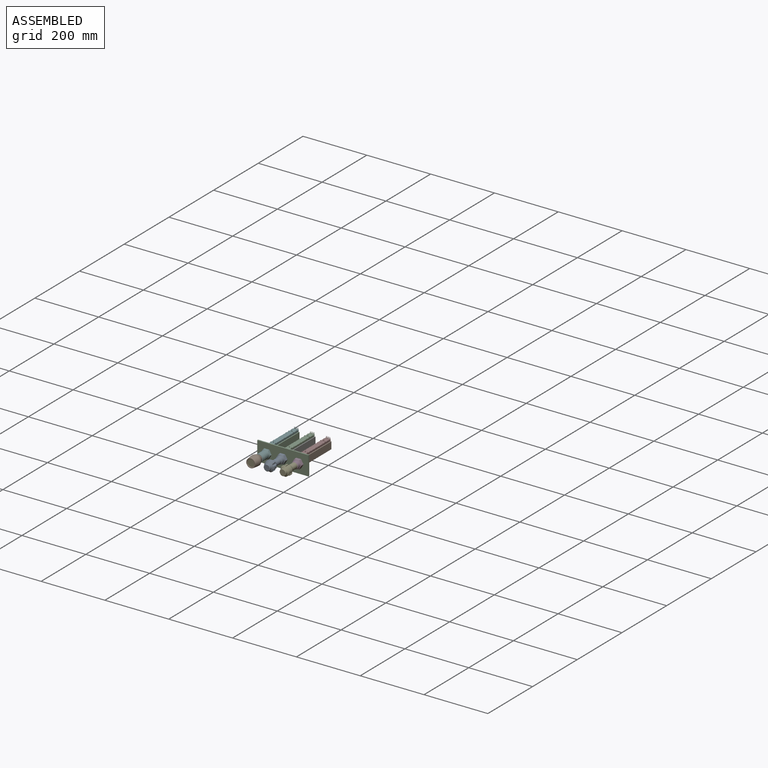
[diagram: assembled view]
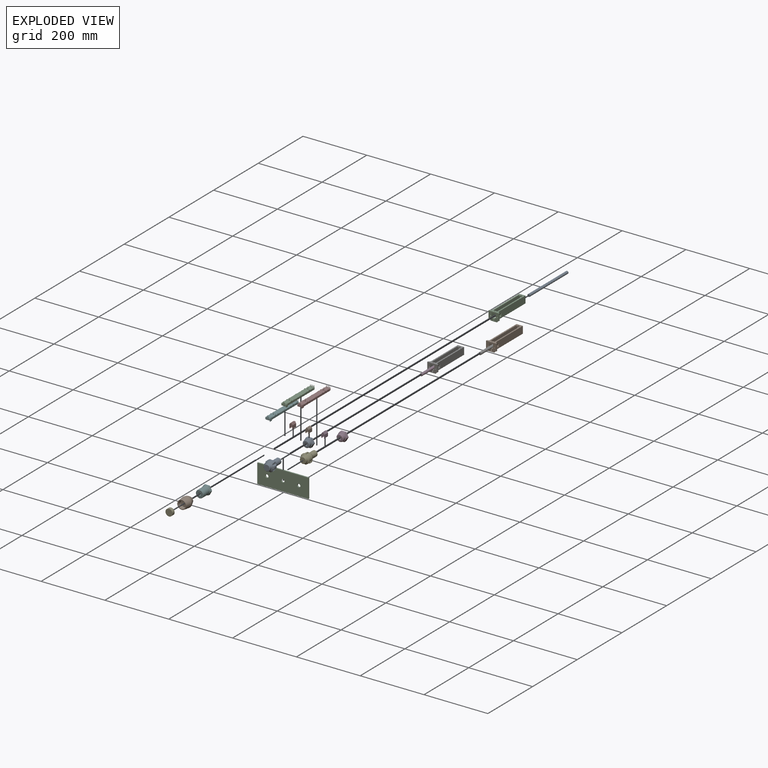
[diagram: exploded view]
GUIDED TOUR — MATED ASSEMBLY (Onshape document 357993faaa1f4a3f9a928aa9, AutoMate assembly 357993faaa1f4a3f9a928aa9_1802d2d32b6d1a97c634d530_14165615821d3f369366fef0_default)

This assembly has 20 components, labeled P0..P19 below (a component is one placed occurrence of a part; the same part can appear more than once), held together by 19 mates. A mate is a constraint between two components; its type names the relative motion it leaves free:
  FASTENED — locks the two components together rigidly (no relative motion),
  PLANAR — leaves sliding in the plane through the listed point (normal = the listed direction) and rotation about that normal free,
  SLIDER — leaves translation along the listed axis free.
Axis/direction vectors are unit vectors and 'through' points are millimeter coordinates, both in the assembly's world frame.

MATES
  1. FASTENED "Fastened 8": P12 <-> P9, direction (0.000, 1.000, 0.000) through (-50.00, -64.00, 0.00) mm
  2. SLIDER "Slider 3": P16 <-> P0, axis (0.000, 1.000, 0.000) through (0.00, -23.00, 0.00) mm
  3. PLANAR "Planar 1": P15 <-> P13, direction (0.000, 0.000, 1.000) through (-50.00, 112.00, 5.20) mm
  4. FASTENED "Fastened 6": P16 <-> P3, direction (0.000, 1.000, 0.000) through (0.00, -56.00, 0.00) mm
  5. FASTENED "Fastened 4": P8 <-> P9, direction (0.000, 1.000, 0.000) through (-50.00, -56.00, 0.00) mm
  6. FASTENED "Fastened 1": P0 <-> P2, direction (0.000, -1.000, 0.000) through (0.00, -4.00, 0.00) mm
  7. PLANAR "Planar 4": P17 <-> P2, direction (0.000, -1.000, 0.000) through (50.00, 0.00, -10.00) mm
  8. FASTENED "Fastened 3": P19 <-> P2, direction (0.000, 1.000, 0.000) through (50.00, -4.00, 0.00) mm
  9. SLIDER "Slider 2": P4 <-> P19, axis (0.000, 1.000, 0.000) through (50.00, -23.00, 0.00) mm
  10. SLIDER "Slider 1": P9 <-> P5, axis (0.000, 1.000, 0.000) through (-50.00, -39.00, 0.00) mm
  11. FASTENED "Fastened 5": P6 <-> P10, direction (0.000, 0.000, 1.000) through (0.00, 4.00, 13.40) mm
  12. PLANAR "Planar 2": P18 <-> P2, direction (0.000, -1.000, 0.000) through (-50.00, 0.00, -10.00) mm
  13. PLANAR "Planar 1": P1 <-> P10, direction (0.000, 0.000, 1.000) through (0.00, 112.00, 5.20) mm
  14. FASTENED "Fastened 7": P14 <-> P4, direction (0.000, -1.000, 0.000) through (50.00, -56.00, 0.00) mm
  15. PLANAR "Planar 1": P11 <-> P7, direction (0.000, 0.000, 1.000) through (50.00, 112.00, 5.20) mm
  16. PLANAR "Planar 3": P6 <-> P2, direction (0.000, -1.000, 0.000) through (0.00, 0.00, -10.00) mm
  17. FASTENED "Fastened 5": P18 <-> P13, direction (0.000, 0.000, 1.000) through (-50.00, 4.00, 13.40) mm
  18. FASTENED "Fastened 5": P17 <-> P7, direction (0.000, 0.000, 1.000) through (50.00, 4.00, 13.40) mm
  19. FASTENED "Fastened 2": P5 <-> P2, direction (0.000, 1.000, 0.000) through (-50.00, -4.00, 0.00) mm

ASSEMBLY ORDER
  1. P16 — the base component [order heuristic]
  2. P4 — core [order heuristic]
  3. P9 — core [order heuristic]
  4. P12 — core [order heuristic]
  5. P5 [order verified]
  6. P0 [order verified]
  7. P19 [order verified]
  8. P2 [order verified]
  9. P8 — core [order heuristic]
  10. P14 — core [order heuristic]
  11. P3 — core [order heuristic]
  12. P6 [order verified]
  13. P17 [order verified]
  14. P18 [order verified]
  15. P1 [order verified]
  16. P15 [order verified]
  17. P11 [order verified]
  18. P13 [order verified]
  19. P10 [order verified]
  20. P7 [order verified]
Order-tag legend:
  [order verified] — this step's position reverses a verified removal order: the component was checked to insert without passing through the ones already placed.
  [order heuristic] — the first 7 components form the assembly's core: parts whose collision-free extraction could not be verified, listed in mate-graph order.

Of the 20 components, 1 carries the full construction recipe — the FeatureScript program that regenerates the part's solid from scratch; the rest are supplied as boundary geometry only.
Because this assembly has more than 12 components, the tour below covers the 12 most significant ones individually (every recipe-attached component first, then the largest by part volume), in assembly order; the remaining 8 are summarized together in a grouped section at the end.
Each toured component is shown spotlighted twice — in the assembled view, then in the exploded view, where a leader line traces a displaced component back to its assembled socket (saturated green if recipe-attached, orange if geometry-only; every other component desaturated gray) — followed by its recipe or geometry summary and the mates that hold it.
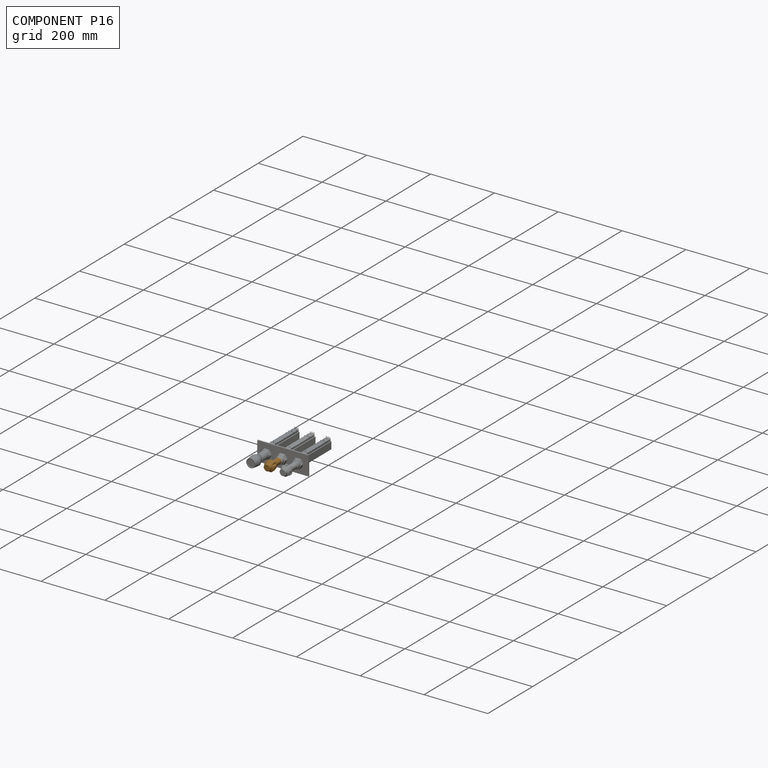
[diagram: component P16 — assembled]
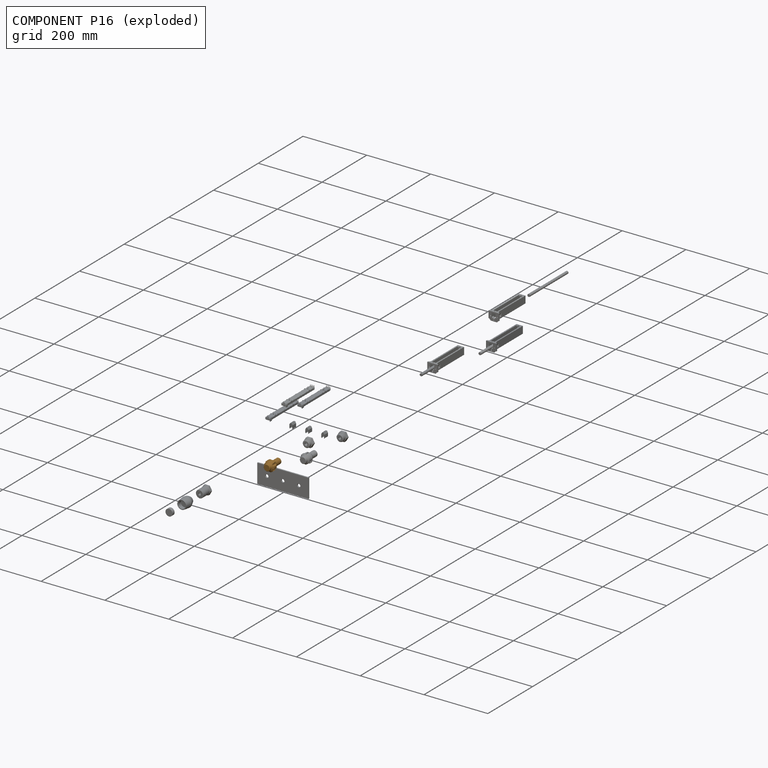
[diagram: component P16 — exploded]
COMPONENT P16 — geometry summary (no construction recipe available for this part):
  bounding box: 53.0 x 32.0 x 32.0 mm
  B-rep topology: 1 solid, 28 faces, 136 edges
  volume: 19988 mm^3 (37% of its bounding box)
  symmetry: 6-fold rotationally symmetric about the y axis; mirror-symmetric across its x mid-plane, z mid-plane
Held by: SLIDER mate "Slider 3" to P0; FASTENED mate "Fastened 6" to P3.
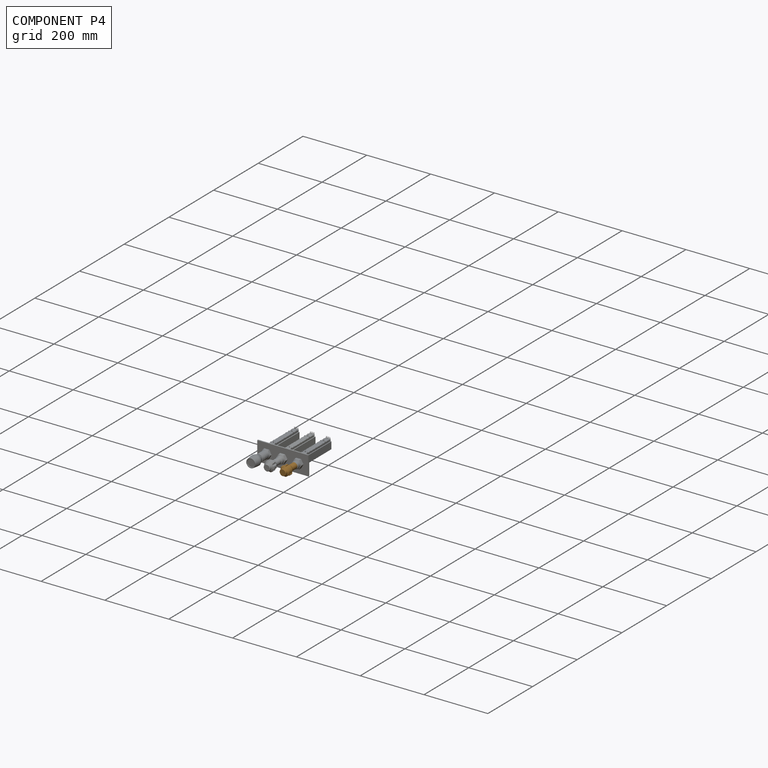
[diagram: component P4 — assembled]
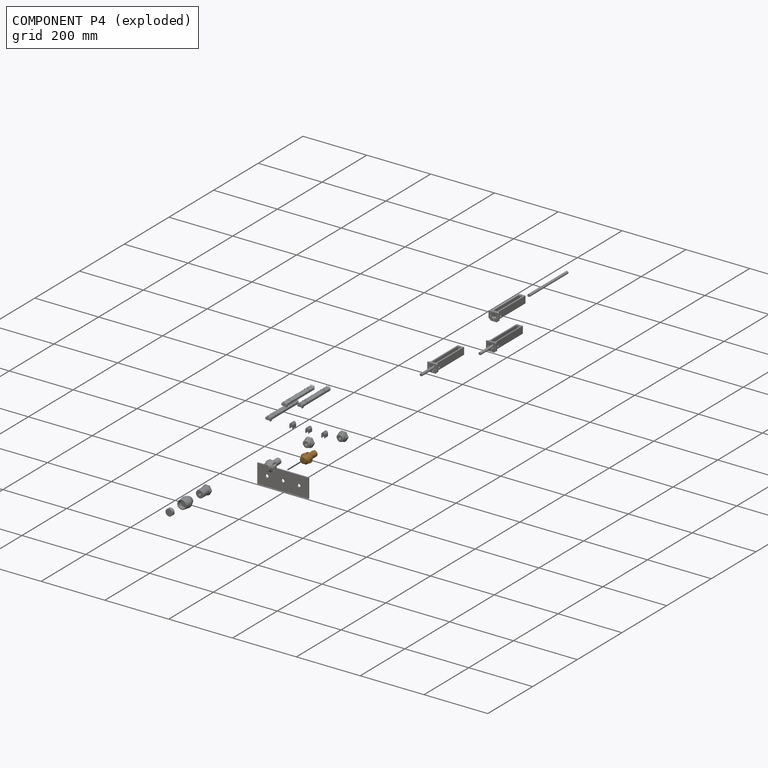
[diagram: component P4 — exploded]
COMPONENT P4 — geometry summary (no construction recipe available for this part):
  bounding box: 53.0 x 32.0 x 32.0 mm
  B-rep topology: 1 solid, 35 faces, 182 edges
  volume: 19668 mm^3 (36% of its bounding box)
  symmetry: 6-fold rotationally symmetric about the y axis; mirror-symmetric across its x mid-plane, z mid-plane
Held by: SLIDER mate "Slider 2" to P19; FASTENED mate "Fastened 7" to P14.
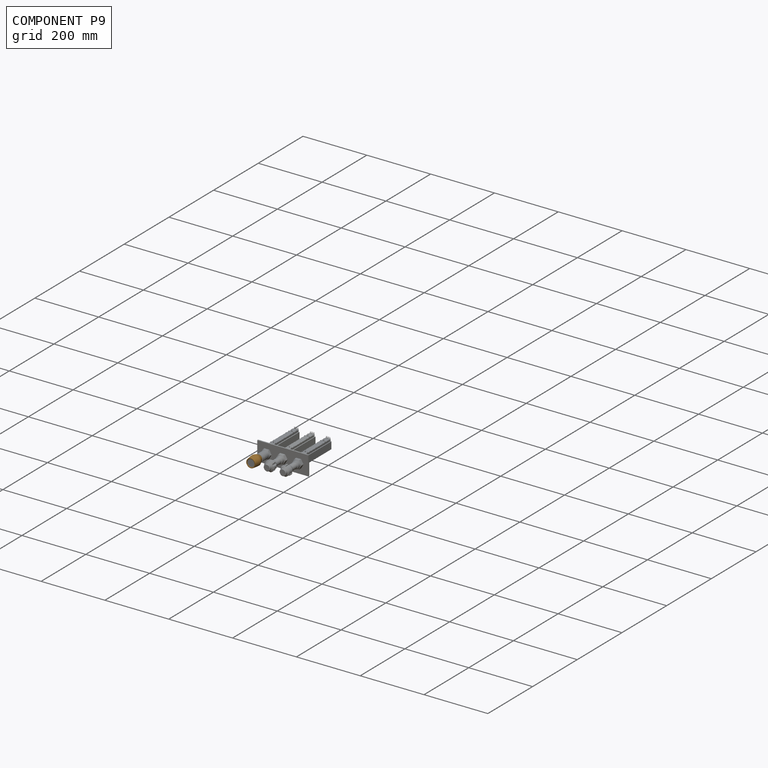
[diagram: component P9 — assembled]
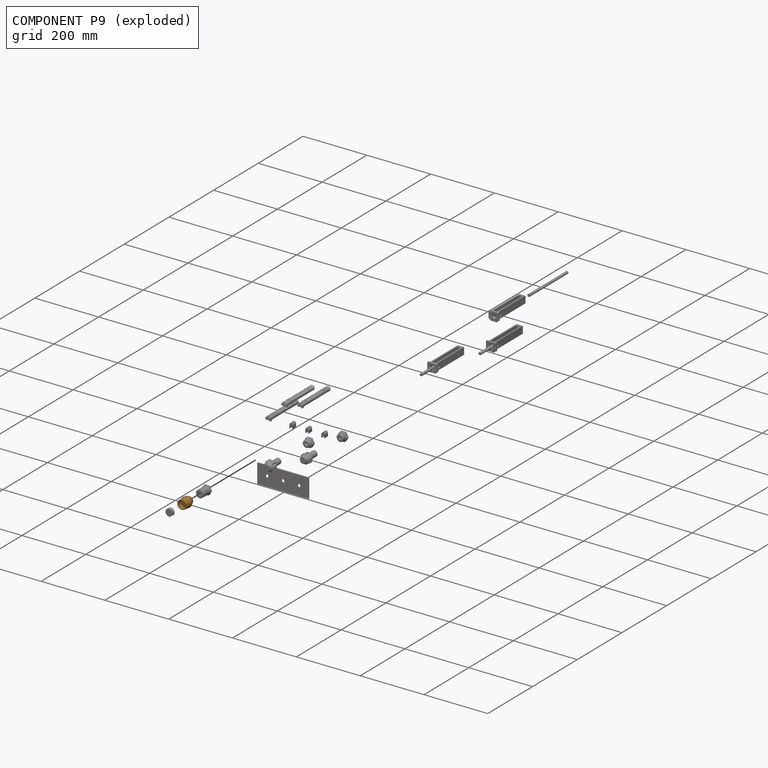
[diagram: component P9 — exploded]
COMPONENT P9 — geometry summary (no construction recipe available for this part):
  bounding box: 37.0 x 33.5 x 31.8 mm
  B-rep topology: 1 solid, 11 faces, 40 edges
  volume: 19224 mm^3 (49% of its bounding box)
  symmetry: 2-fold rotationally symmetric about the y axis; mirror-symmetric across its x mid-plane, z mid-plane
Held by: FASTENED mate "Fastened 8" to P12; FASTENED mate "Fastened 4" to P8; SLIDER mate "Slider 1" to P5.
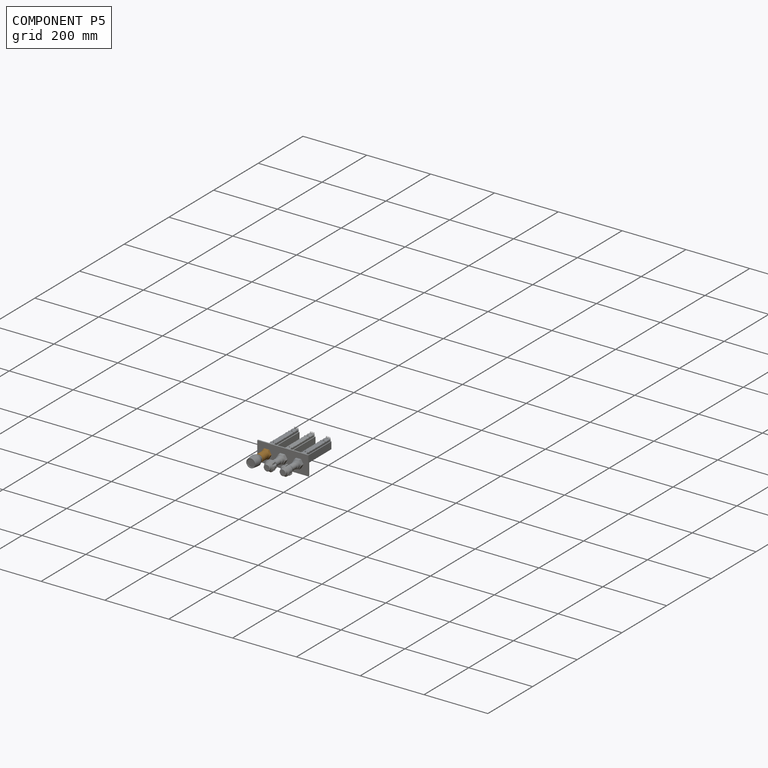
[diagram: component P5 — assembled]
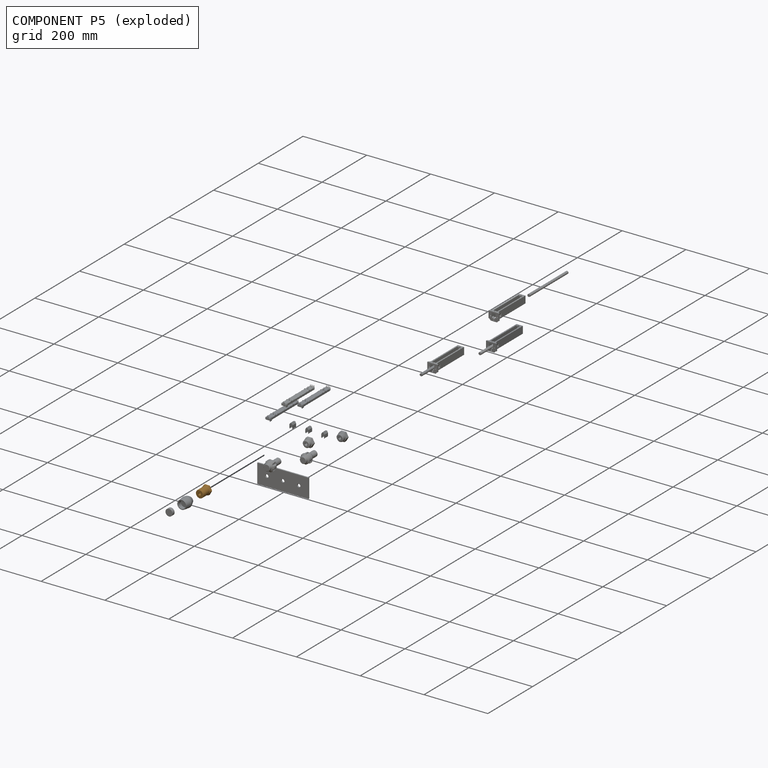
[diagram: component P5 — exploded]
COMPONENT P5 — geometry summary (no construction recipe available for this part):
  bounding box: 35.0 x 30.0 x 30.0 mm
  B-rep topology: 1 solid, 29 faces, 128 edges
  volume: 14607 mm^3 (46% of its bounding box)
  symmetry: 2-fold rotationally symmetric about the z axis; mirror-symmetric across its x mid-plane, y mid-plane
Held by: SLIDER mate "Slider 1" to P9; FASTENED mate "Fastened 2" to P2.
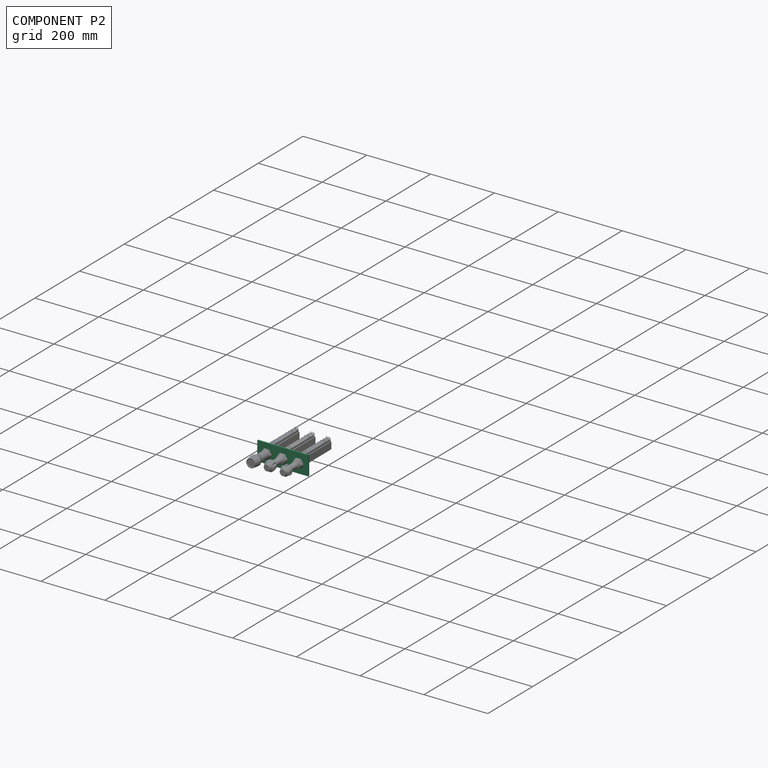
[diagram: component P2 — assembled]
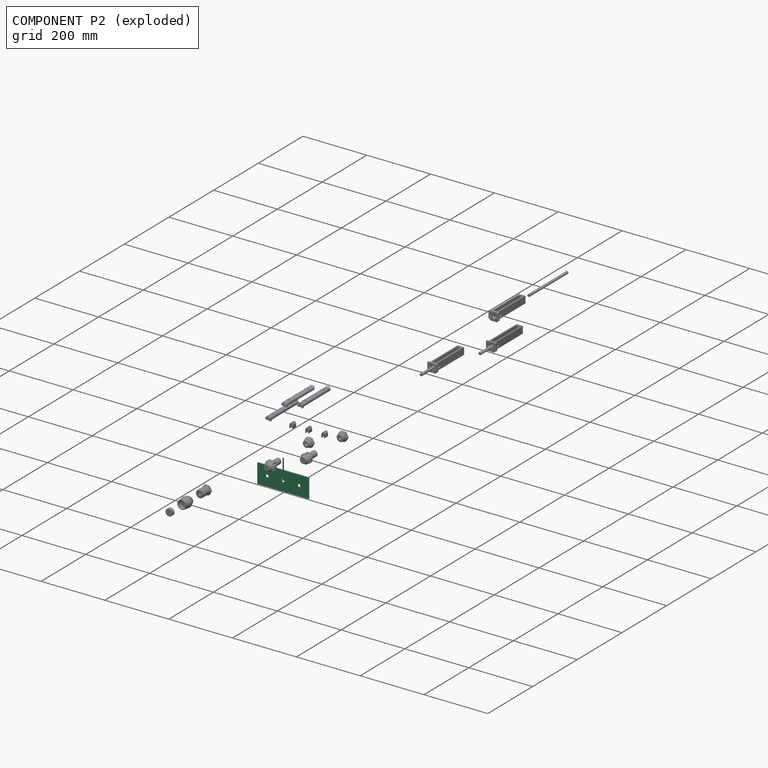
[diagram: component P2 — exploded]
COMPONENT P2 — recipe-attached (CADFS 00593931, mesh-verified: the recipe's output STEP matches this component's geometry to below the mesh-comparison resolution (tessellation chordal tolerance ~0.256 mm)).
Held by: FASTENED mate "Fastened 1" to P0; PLANAR mate "Planar 4" to P17; FASTENED mate "Fastened 3" to P19; PLANAR mate "Planar 2" to P18; PLANAR mate "Planar 3" to P6; FASTENED mate "Fastened 2" to P5.
Construction recipe (FeatureScript — the CAD program that rebuilds this solid; sketch coordinates are in the units given by the * unit suffixes, e.g. mm):

FeatureScript 1511;
import(path : "onshape/std/geometry.fs", version : "1511.0");
import(path : "onshape/std/common.fs", version : "1511.0");
const mm = millimeter;
const VERTEX = EntityType.VERTEX;
const EDGE = EntityType.EDGE;
const FACE = EntityType.FACE;
const BODY = EntityType.BODY;
function v(x, y){return vector(x, y);}
function OD(order){return orderDisambiguation(order);}
function OSD(set){return originalSetDisambiguation(set);}
function TD(topology){return topologyDisambiguation(topology);}
function TDD(query){return trueDependencyDisambiguation(query);}
function sQuery(a, b, c) {return sketchEntityQuery(a, b, c);}

annotation { "Feature Type Name" : "Feature", "Feature Type Description" : "" }
export const myFeature = defineFeature(function(context is Context, id is Id, definition is map)
    precondition{}
    {
        {
            var Q0;
            Q0=qCreatedBy(makeId("Front.planeOp"),FACE);
            var sketch = newSketch(context, id + "F0", { "sketchPlane" : qUnion([Q0])});
            skLineSegment(sketch, "E0.bottom", {"start": v(-80, 30) * mm, "end": v(80, 30) * mm});
            skLineSegment(sketch, "E0.top", {"start": v(-80, -30) * mm, "end": v(80, -30) * mm});
            skLineSegment(sketch, "E0.left", {"start": v(-80, 30) * mm, "end": v(-80, -30) * mm});
            skLineSegment(sketch, "E0.right", {"start": v(80, 30) * mm, "end": v(80, -30) * mm});
            skCircle(sketch, "E1", {"center": v(0, 0) * mm, "radius": 5 * mm});
            skCircle(sketch, "E2", {"center": v(-50, 0) * mm, "radius": 5 * mm});
            skCircle(sketch, "E3.MirrorC", {"center": v(50, 0) * mm, "radius": 5 * mm});
            skSolve(sketch);
        }
        {
            var Q0;
            Q0=makeQuery(id+"F0.imprint","IMPRINT",FACE,{"disambiguationData":[TD([[makeQuery(id+"F0.imprint","IMPRINT",EDGE,{"derivedFrom":sQuery(id+"F0.wireOp",EDGE,"E0.bottom")}),-1.0]])]});
            extrude(context, id + "F1", {"entities" : qUnion([Q0]), "depth" : 4 * mm, "offsetDistance" : 25 * mm});
        }
    });
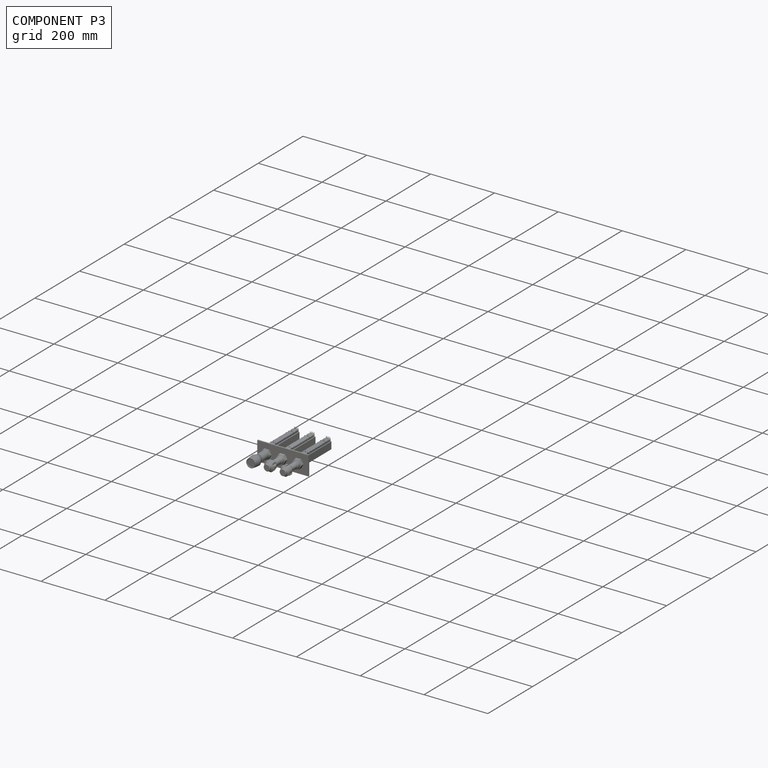
[diagram: component P3 — assembled]
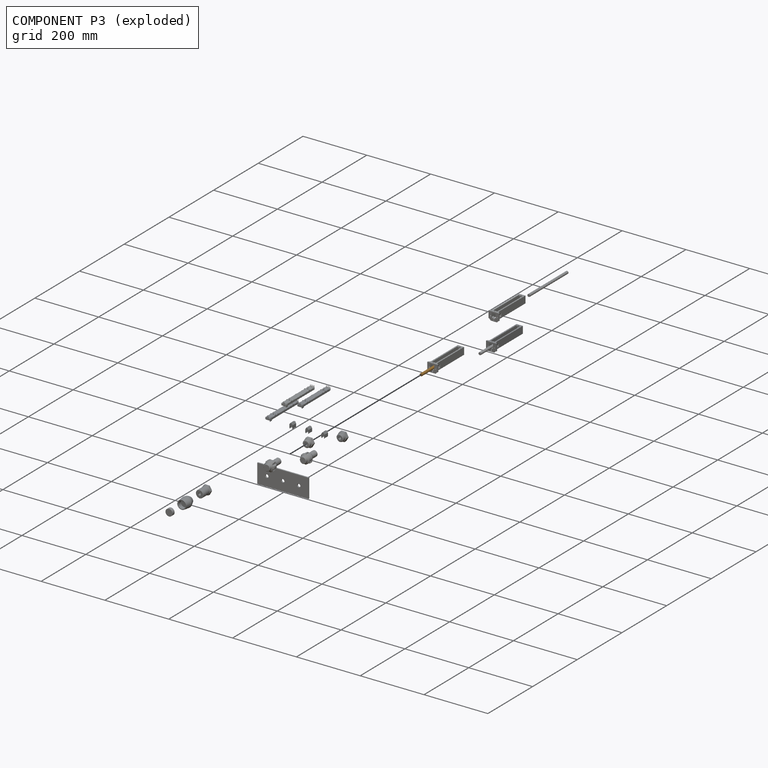
[diagram: component P3 — exploded]
COMPONENT P3 — geometry summary (no construction recipe available for this part):
  bounding box: 172.0 x 8.2 x 8.2 mm
  B-rep topology: 1 solid, 3 faces, 6 edges
  volume: 9083 mm^3 (79% of its bounding box)
  symmetry: revolution-symmetric about the x axis through its bounding-box center; 2-fold rotationally symmetric about the y axis; 2-fold rotationally symmetric about the z axis; mirror-symmetric across its x mid-plane, y mid-plane, z mid-plane
Held by: FASTENED mate "Fastened 6" to P16.
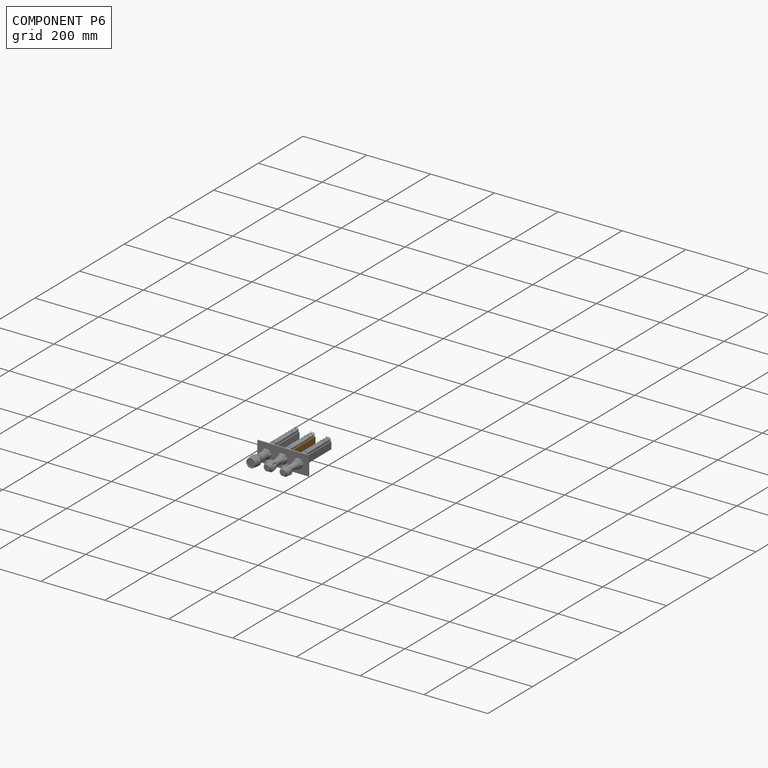
[diagram: component P6 — assembled]
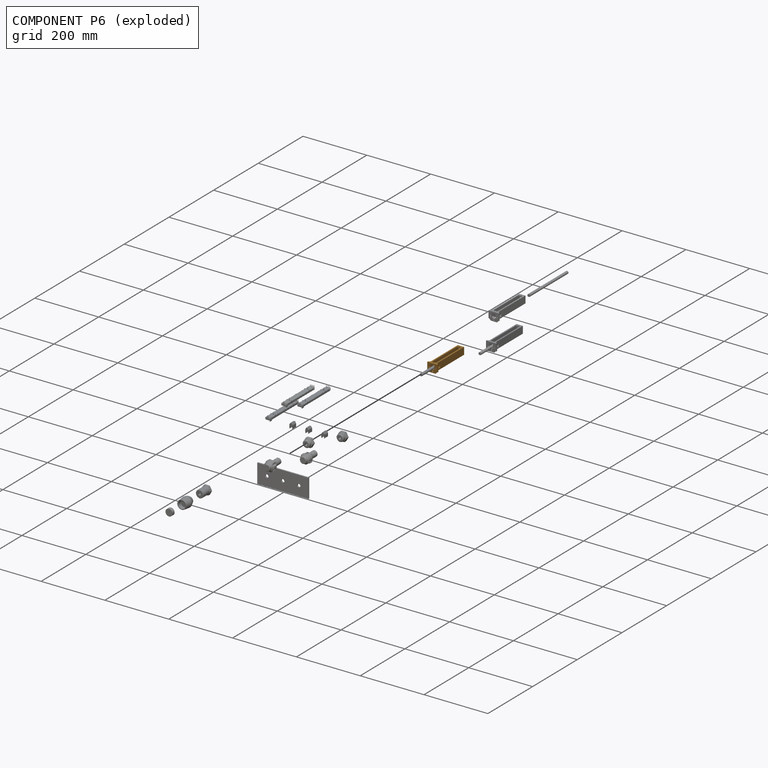
[diagram: component P6 — exploded]
COMPONENT P6 — geometry summary (no construction recipe available for this part):
  bounding box: 128.0 x 32.0 x 27.0 mm
  B-rep topology: 1 solid, 61 faces, 360 edges
  volume: 25200 mm^3 (23% of its bounding box)
  symmetry: mirror-symmetric across its y mid-plane
Held by: FASTENED mate "Fastened 5" to P10; PLANAR mate "Planar 3" to P2.
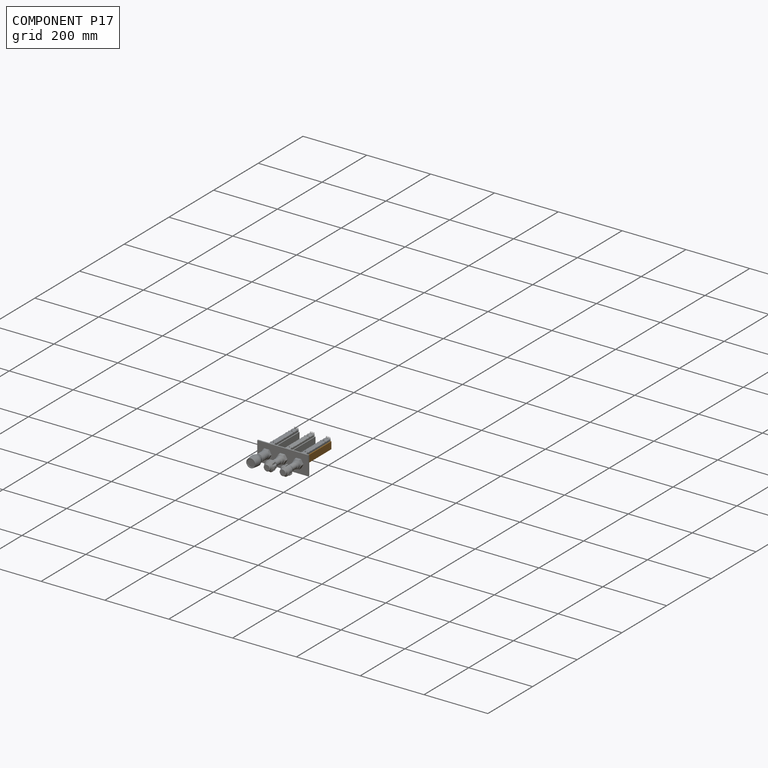
[diagram: component P17 — assembled]
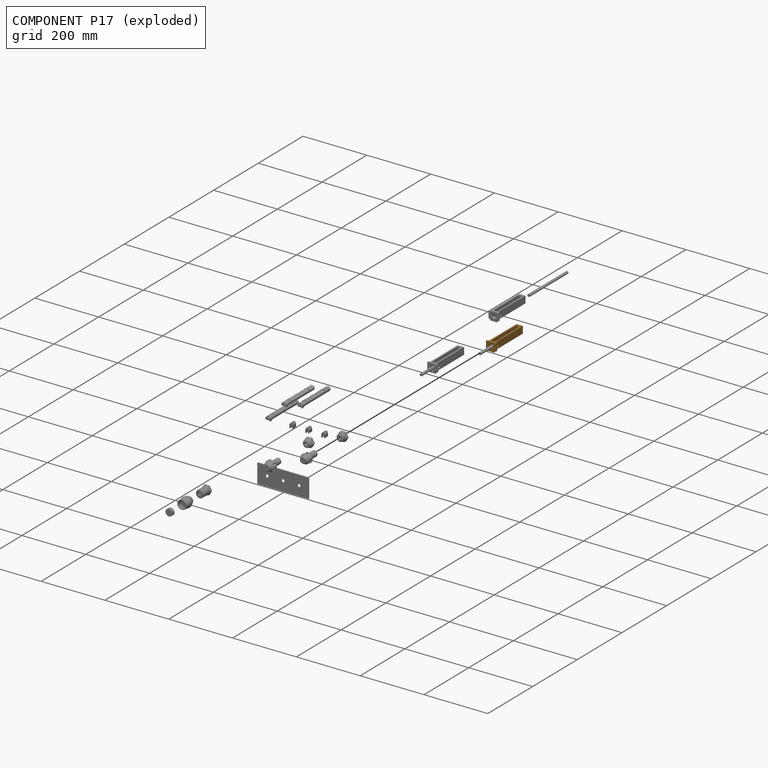
[diagram: component P17 — exploded]
COMPONENT P17 — geometry summary (no construction recipe available for this part):
  bounding box: 128.0 x 32.0 x 27.0 mm
  B-rep topology: 1 solid, 61 faces, 360 edges
  volume: 25200 mm^3 (23% of its bounding box)
  symmetry: mirror-symmetric across its y mid-plane
Held by: PLANAR mate "Planar 4" to P2; FASTENED mate "Fastened 5" to P7.
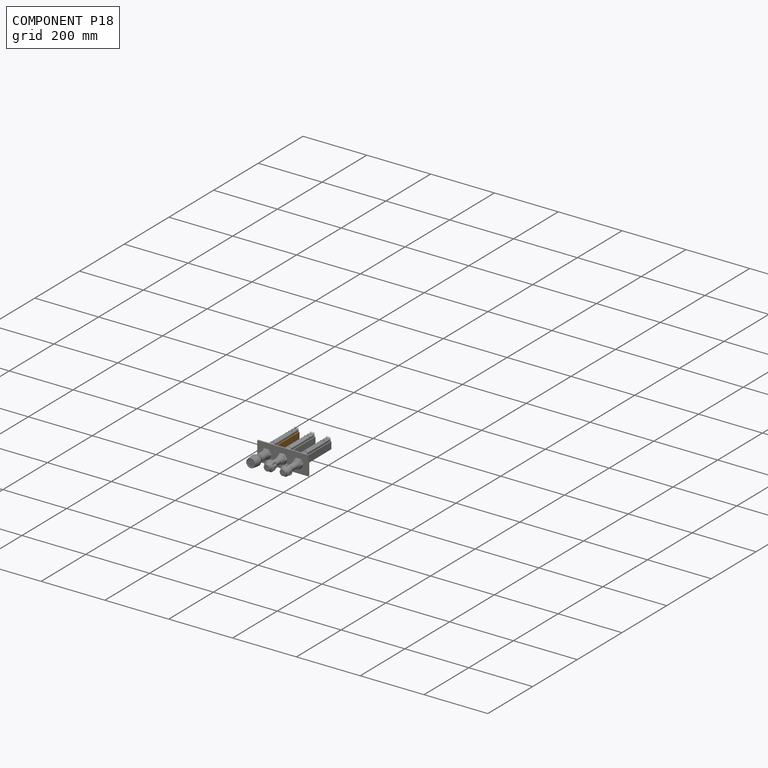
[diagram: component P18 — assembled]
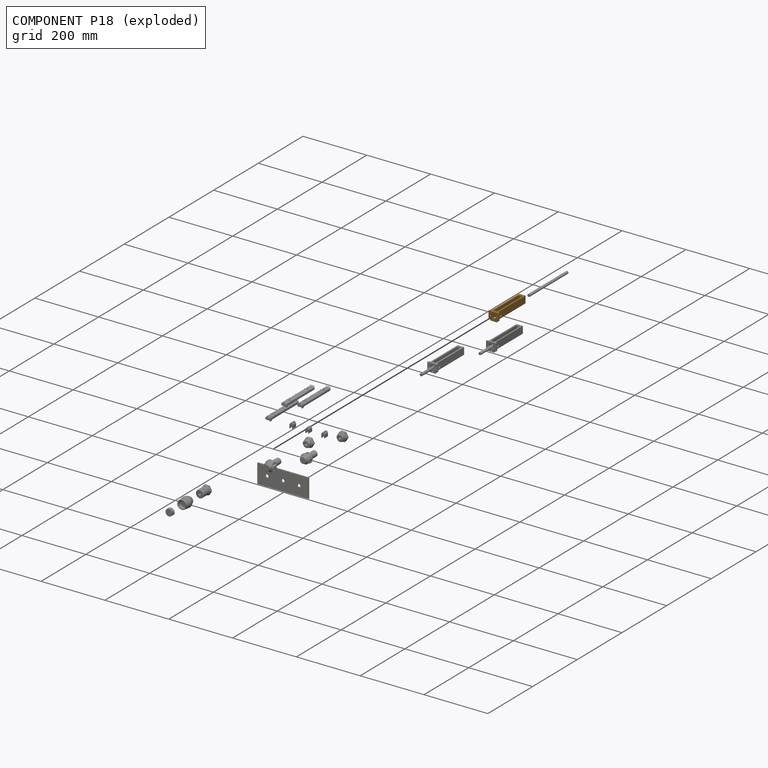
[diagram: component P18 — exploded]
COMPONENT P18 — geometry summary (no construction recipe available for this part):
  bounding box: 128.0 x 32.0 x 27.0 mm
  B-rep topology: 1 solid, 61 faces, 360 edges
  volume: 25200 mm^3 (23% of its bounding box)
  symmetry: mirror-symmetric across its y mid-plane
Held by: PLANAR mate "Planar 2" to P2; FASTENED mate "Fastened 5" to P13.
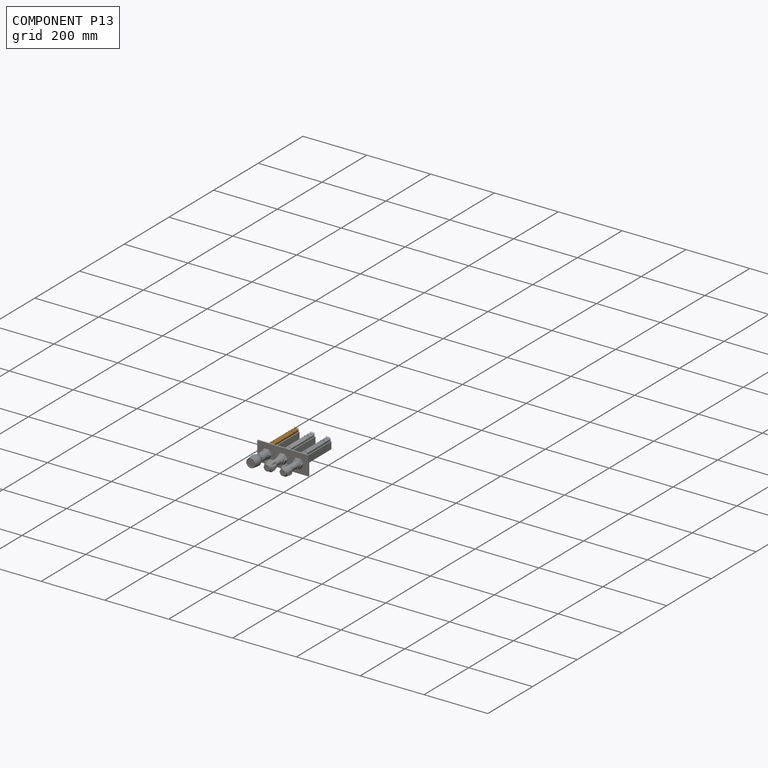
[diagram: component P13 — assembled]
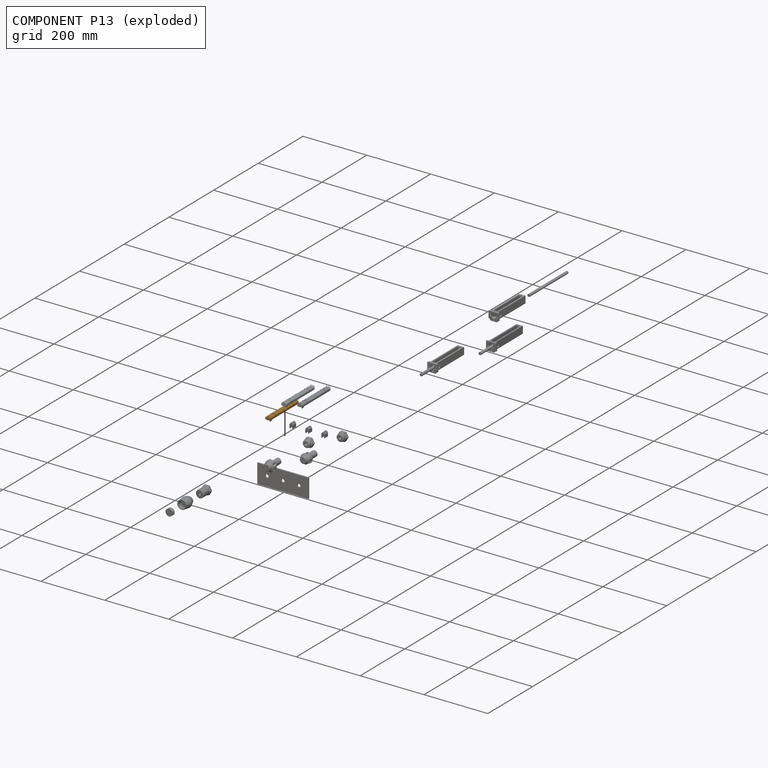
[diagram: component P13 — exploded]
COMPONENT P13 — geometry summary (no construction recipe available for this part):
  bounding box: 128.0 x 19.7 x 16.0 mm
  B-rep topology: 1 solid, 615 faces, 3382 edges
  volume: 12088 mm^3 (30% of its bounding box)
Held by: PLANAR mate "Planar 1" to P15; FASTENED mate "Fastened 5" to P18.
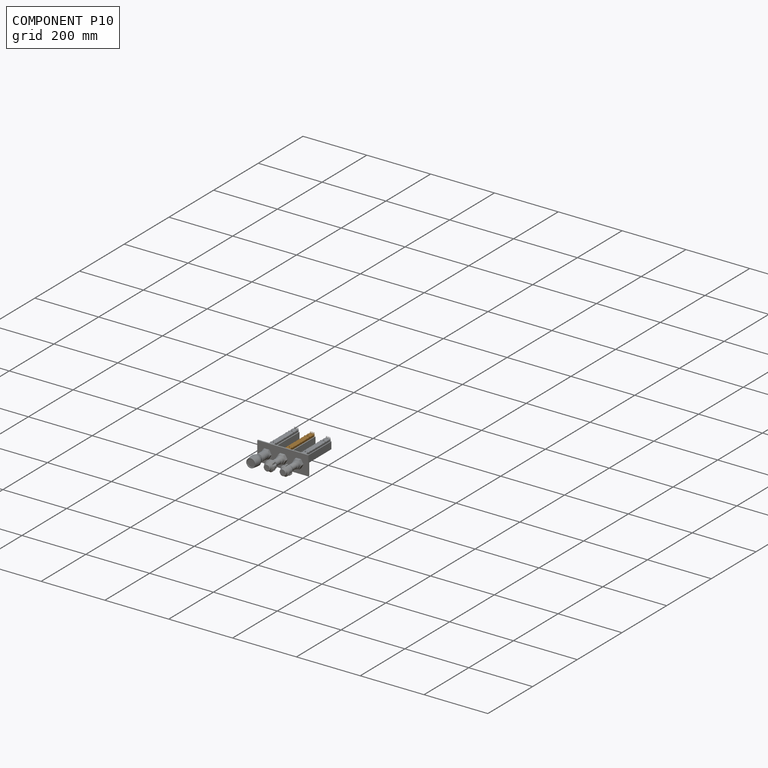
[diagram: component P10 — assembled]
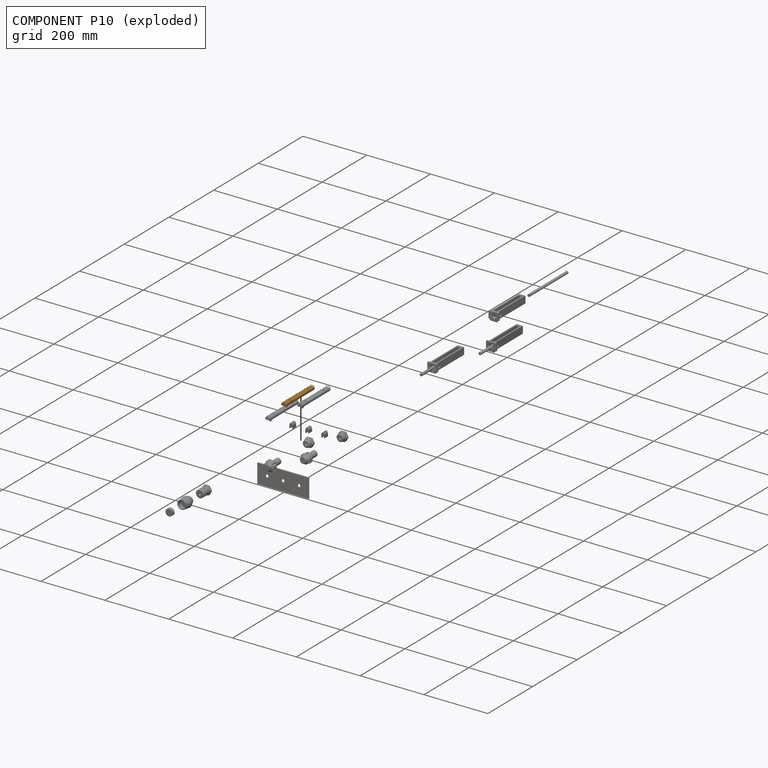
[diagram: component P10 — exploded]
COMPONENT P10 — geometry summary (no construction recipe available for this part):
  bounding box: 128.0 x 19.7 x 16.0 mm
  B-rep topology: 1 solid, 615 faces, 3382 edges
  volume: 12088 mm^3 (30% of its bounding box)
Held by: FASTENED mate "Fastened 5" to P6; PLANAR mate "Planar 1" to P1.
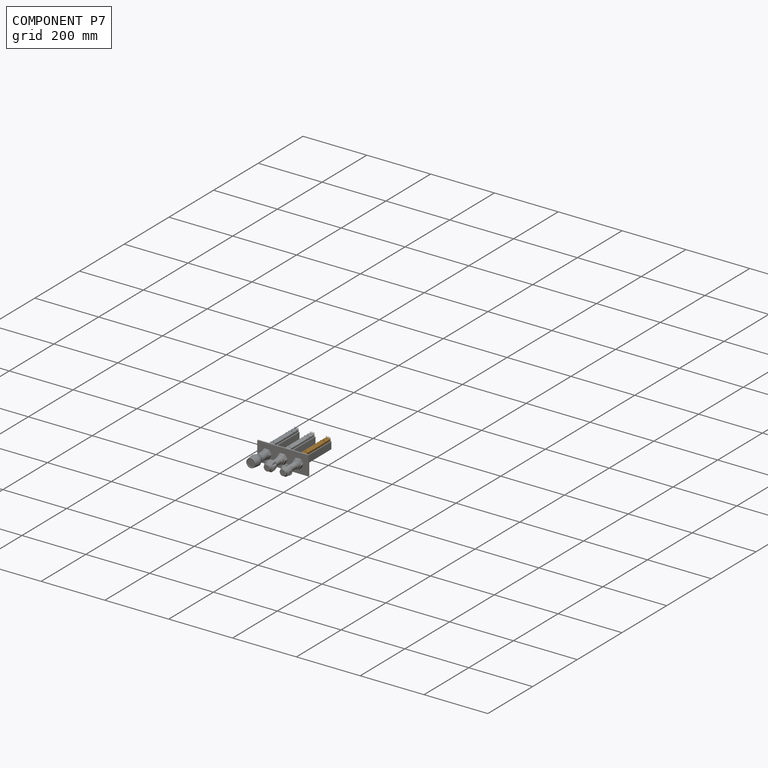
[diagram: component P7 — assembled]
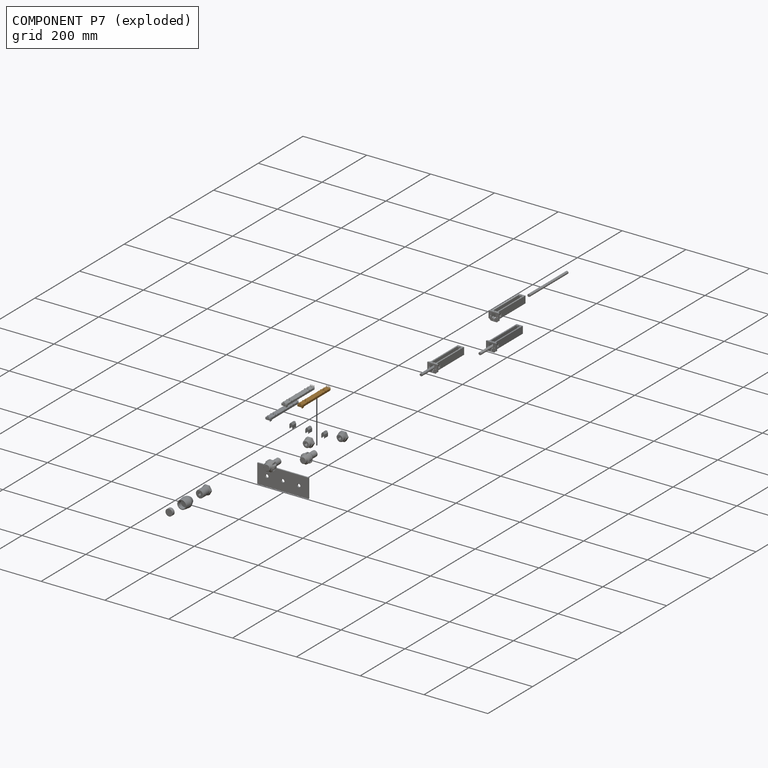
[diagram: component P7 — exploded]
COMPONENT P7 — geometry summary (no construction recipe available for this part):
  bounding box: 128.0 x 19.7 x 16.0 mm
  B-rep topology: 1 solid, 615 faces, 3382 edges
  volume: 12088 mm^3 (30% of its bounding box)
Held by: PLANAR mate "Planar 1" to P11; FASTENED mate "Fastened 5" to P17.
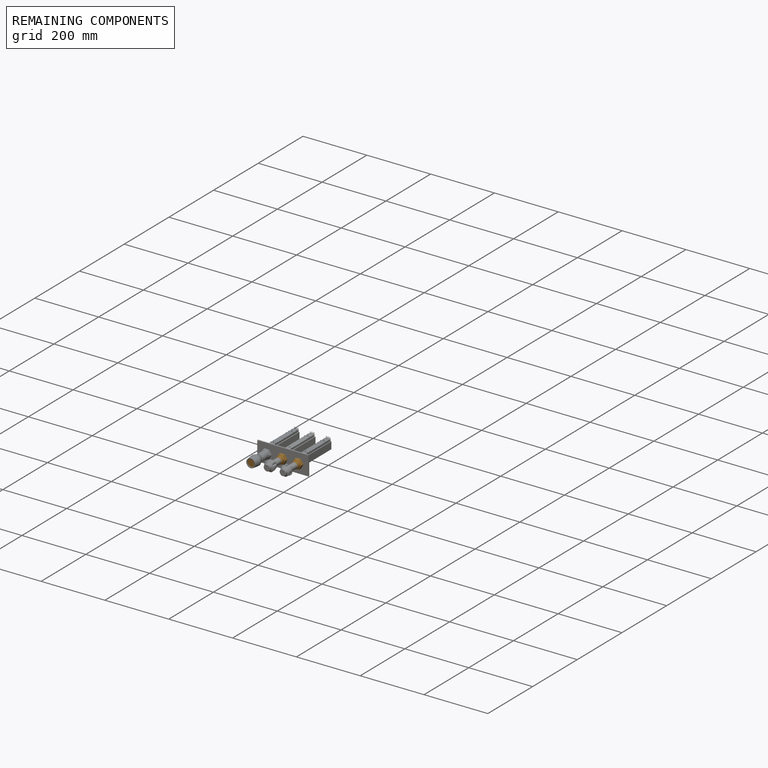
[diagram: remaining components — assembled]
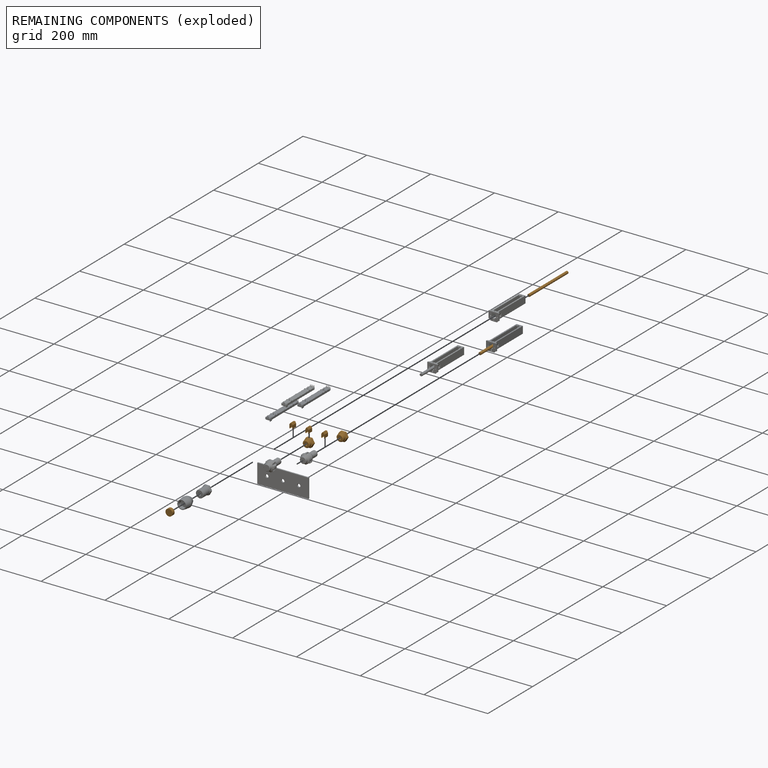
[diagram: remaining components — exploded]
REMAINING COMPONENTS (grouped) — the 8 components below fall outside the per-component tour by the significance rule stated above; both spotlight views highlight the whole group.
  P12: bounding box 21.8 x 21.8 x 10.8 mm, volume 2981 mm^3. Held by: FASTENED mate "Fastened 8" to P9.
  P0: bounding box 30.0 x 30.0 x 19.0 mm, volume 7961 mm^3. Held by: SLIDER mate "Slider 3" to P16; FASTENED mate "Fastened 1" to P2.
  P19: bounding box 30.0 x 30.0 x 19.0 mm, volume 7961 mm^3. Held by: FASTENED mate "Fastened 3" to P2; SLIDER mate "Slider 2" to P4.
  P8: bounding box 172.0 x 8.2 x 8.2 mm, volume 9083 mm^3. Held by: FASTENED mate "Fastened 4" to P9.
  P14: bounding box 172.0 x 8.2 x 8.2 mm, volume 9083 mm^3. Held by: FASTENED mate "Fastened 7" to P4.
  P1: bounding box 16.0 x 15.8 x 10.0 mm, volume 1581 mm^3. Held by: PLANAR mate "Planar 1" to P10.
  P15: bounding box 16.0 x 15.8 x 10.0 mm, volume 1581 mm^3. Held by: PLANAR mate "Planar 1" to P13.
  P11: bounding box 16.0 x 15.8 x 10.0 mm, volume 1581 mm^3. Held by: PLANAR mate "Planar 1" to P7.
PROVENANCE & LICENSES
Assembly (occurrences, transforms, mates, per-part STEP geometry): AutoMate dataset, Zenodo record 7776208, CC0.
Construction recipes: CADFS (HuggingFace VladPyatov/CADFS, CC-BY-4.0, layered over the ABC dataset), FeatureScript reconstruction programs keyed by ABC model id.
Join: ABC meta listings map ABC model id -> Onshape documentId; within a shared document, parts are matched by geometric signature (bounding-box dims + volume at 0.1% relative tolerance, exact B-rep face/solid counts).
Verification: 1 of this assembly's 20 components carries a recipe attachment, and every attachment is mesh-verified: the CADFS STEP and the AutoMate member STEP were compared as meshes in their shared local frame (symmetric sampled-point-to-mesh distance); worst across the 1 attachment: below the mesh-comparison resolution (tessellation chordal tolerance ~0.256 mm) on a 171 mm part.
Renders: orthographic iso camera (az 35 / el 25); the floor grid conveys scale (grid pitch printed in each image; no ruler). In the exploded view each component is displaced by its stored offset vector: the offsets alone carry the explosion direction (mate normal/axis signs are not orientation cues and do not encode it), and separation distances are assigned per mate-chain, not proportionally to assembly-order depth.
